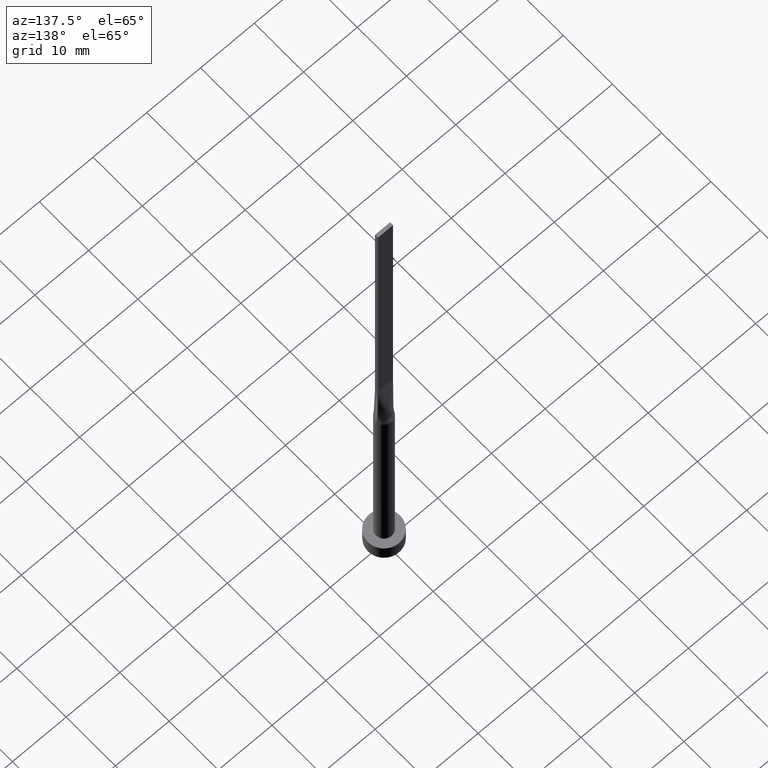
[diagram: clean part render]
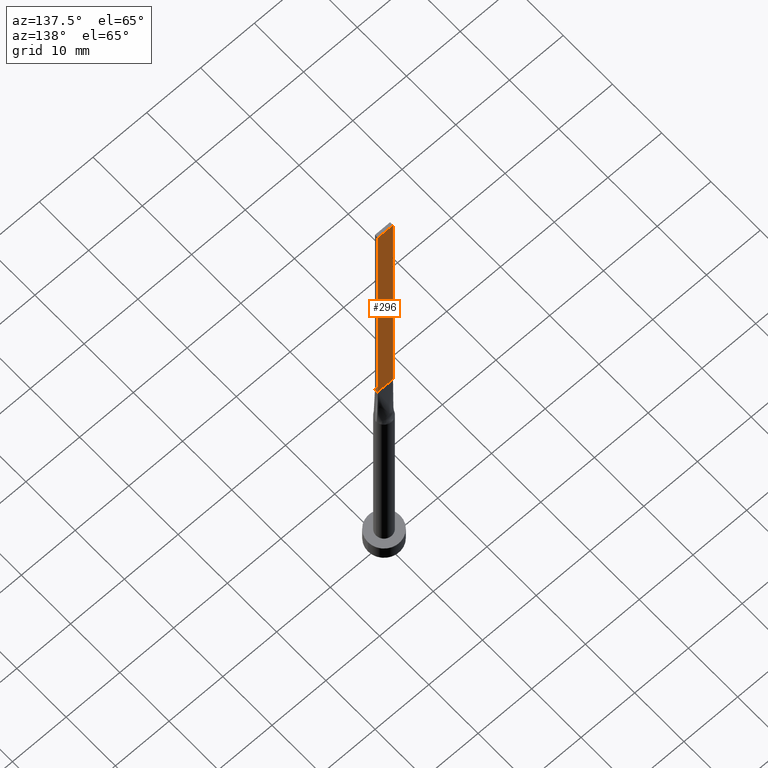
[diagram: same view with one face highlighted and labeled with its STEP entity id]
A machine part, auxiliary view. The second image highlights one B-rep face of the part: STEP entity #296.
In plain terms, the highlighted planar face has unit normal (0, -1, 0).
Its self-contained STEP definition (entity closure, byte-faithful):
#4 = VECTOR ( 'NONE', #37, 1000.000000000000000 ) ;
#20 = FACE_OUTER_BOUND ( 'NONE', #98, .T. ) ;
#30 = ORIENTED_EDGE ( 'NONE', *, *, #550, .T. ) ;
#37 = DIRECTION ( 'NONE',  ( -0.000000000000000000, -0.000000000000000000, -1.000000000000000000 ) ) ;
#50 = CARTESIAN_POINT ( 'NONE',  ( -1.399999999999999689, 0.3000000000000002109, 50.00000000000000000 ) ) ;
#74 = LINE ( 'NONE', #350, #4 ) ;
#83 = EDGE_CURVE ( 'NONE', #507, #375, #487, .T. ) ;
#98 = EDGE_LOOP ( 'NONE', ( #132, #216, #423, #30 ) ) ;
#132 = ORIENTED_EDGE ( 'NONE', *, *, #579, .T. ) ;
#143 = CARTESIAN_POINT ( 'NONE',  ( -1.399999999999999689, 0.3000000000000002109, 100.0000000000000000 ) ) ;
#148 = AXIS2_PLACEMENT_3D ( 'NONE', #306, #308, #568 ) ;
#149 = VECTOR ( 'NONE', #495, 1000.000000000000000 ) ;
#152 = LINE ( 'NONE', #50, #149 ) ;
#207 = PLANE ( 'NONE',  #148 ) ;
#212 = VERTEX_POINT ( 'NONE', #403 ) ;
#216 = ORIENTED_EDGE ( 'NONE', *, *, #414, .F. ) ;
#274 = LINE ( 'NONE', #458, #378 ) ;
#292 = VECTOR ( 'NONE', #567, 1000.000000000000000 ) ;
#296 = ADVANCED_FACE ( 'NONE', ( #20 ), #207, .F. ) ;
#306 = CARTESIAN_POINT ( 'NONE',  ( 1.399999999999999689, 0.3000000000000002109, 100.0000000000000000 ) ) ;
#308 = DIRECTION ( 'NONE',  ( 0.000000000000000000, -1.000000000000000000, 0.000000000000000000 ) ) ;
#350 = CARTESIAN_POINT ( 'NONE',  ( -1.399999999999999689, 0.3000000000000002109, 100.0000000000000000 ) ) ;
#367 = CARTESIAN_POINT ( 'NONE',  ( 1.399999999999999689, 0.3000000000000002109, 100.0000000000000000 ) ) ;
#375 = VERTEX_POINT ( 'NONE', #143 ) ;
#378 = VECTOR ( 'NONE', #450, 1000.000000000000000 ) ;
#383 = VERTEX_POINT ( 'NONE', #437 ) ;
#403 = CARTESIAN_POINT ( 'NONE',  ( 1.399999999999999689, 0.3000000000000002109, 50.00000000000000000 ) ) ;
#414 = EDGE_CURVE ( 'NONE', #375, #383, #74, .T. ) ;
#423 = ORIENTED_EDGE ( 'NONE', *, *, #83, .F. ) ;
#430 = CARTESIAN_POINT ( 'NONE',  ( 1.399999999999999689, 0.3000000000000002109, 100.0000000000000000 ) ) ;
#437 = CARTESIAN_POINT ( 'NONE',  ( -1.399999999999999689, 0.3000000000000002109, 50.00000000000000000 ) ) ;
#450 = DIRECTION ( 'NONE',  ( -0.000000000000000000, -0.000000000000000000, -1.000000000000000000 ) ) ;
#458 = CARTESIAN_POINT ( 'NONE',  ( 1.399999999999999689, 0.3000000000000002109, 100.0000000000000000 ) ) ;
#487 = LINE ( 'NONE', #430, #292 ) ;
#495 = DIRECTION ( 'NONE',  ( -1.000000000000000000, -0.000000000000000000, -0.000000000000000000 ) ) ;
#507 = VERTEX_POINT ( 'NONE', #367 ) ;
#550 = EDGE_CURVE ( 'NONE', #507, #212, #274, .T. ) ;
#567 = DIRECTION ( 'NONE',  ( -1.000000000000000000, 0.000000000000000000, 0.000000000000000000 ) ) ;
#568 = DIRECTION ( 'NONE',  ( 0.000000000000000000, -0.000000000000000000, -1.000000000000000000 ) ) ;
#579 = EDGE_CURVE ( 'NONE', #212, #383, #152, .T. ) ;